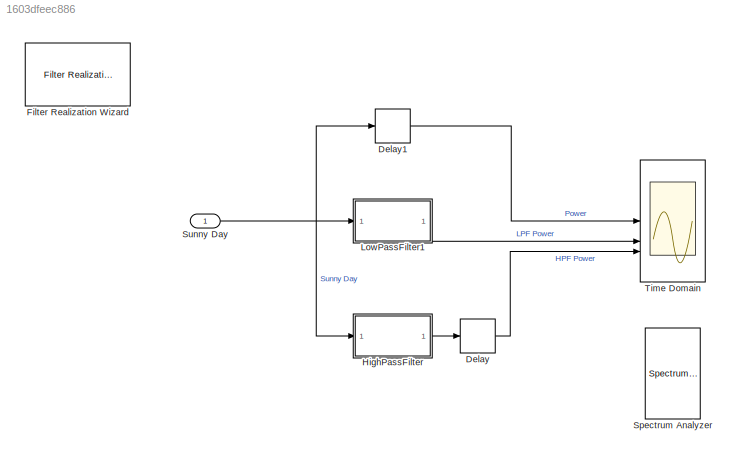
MODEL slx_1603dfeec886
KIND model
CONFIG AbsTol = auto
CONFIG EnableMultiTasking = off
CONFIG FixedStep = auto
CONFIG MaxStep = auto
CONFIG MinStep = auto
CONFIG RelTol = 1e-3
CONFIG SampleTimeConstraint = Unconstrained
CONFIG SolverName = VariableStepAuto
CONFIG StartTime = 0.0
CONFIG StopTime = 1
BLOCK [Delay] Delay
  InputPortMap = u0
BLOCK [Delay] Delay1
  DelayLength = 3
  InputPortMap = u0
BLOCK [Reference] Filter Realization Wizard  REF=dspfdesign/Filter
Realization
Wizard
  Commented = on
  SourceBlock = dspfdesign/Filter\nRealization\nWizard
  SourceType = Filter Realization Wizard
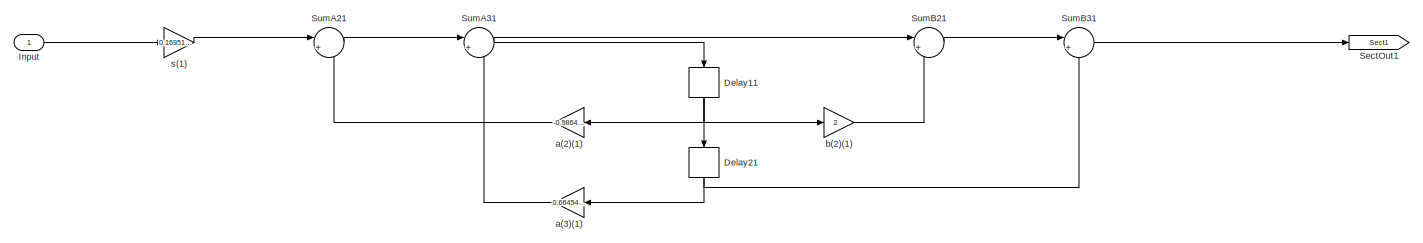
[diagram: HighPassFilter - part 1/2, left side, full height]
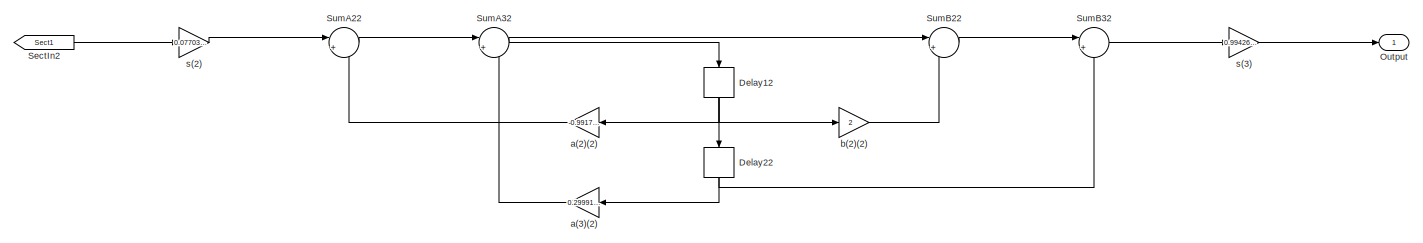
[diagram: HighPassFilter - part 2/2, right side, full height]
BLOCK [SubSystem] HighPassFilter
  ErrorFcn = dspFilterRealizedInBasicElemsAlgLoopErrFcnCallback
  Tag = FilterWizardSubSystem
  UserDataPersistent = on
BLOCK [Delay] HighPassFilter/Delay11
  DelayLength = 1
  InitialCondition = 0
  InputPortMap = u0
  NameLocation = right
BLOCK [Delay] HighPassFilter/Delay12
  DelayLength = 1
  InitialCondition = 0
  InputPortMap = u0
  NameLocation = right
BLOCK [Delay] HighPassFilter/Delay21
  DelayLength = 1
  InitialCondition = 0
  InputPortMap = u0
  NameLocation = right
BLOCK [Delay] HighPassFilter/Delay22
  DelayLength = 1
  InitialCondition = 0
  InputPortMap = u0
  NameLocation = right
BLOCK [Inport] HighPassFilter/Input
BLOCK [Outport] HighPassFilter/Output
BLOCK [From] HighPassFilter/SectIn2
  GotoTag = Sect1
BLOCK [Goto] HighPassFilter/SectOut1
  GotoTag = Sect1
BLOCK [Sum] HighPassFilter/SumA21
  Inputs = |+-
  OutDataTypeStr = Inherit: Same as first input
  RndMeth = Nearest
  SaturateOnIntegerOverflow = on
BLOCK [Sum] HighPassFilter/SumA22
  Inputs = |+-
  OutDataTypeStr = Inherit: Same as first input
  RndMeth = Nearest
  SaturateOnIntegerOverflow = on
BLOCK [Sum] HighPassFilter/SumA31
  Inputs = |+-
  OutDataTypeStr = Inherit: Same as first input
  RndMeth = Nearest
  SaturateOnIntegerOverflow = on
BLOCK [Sum] HighPassFilter/SumA32
  Inputs = |+-
  OutDataTypeStr = Inherit: Same as first input
  RndMeth = Nearest
  SaturateOnIntegerOverflow = on
BLOCK [Sum] HighPassFilter/SumB21
  Inputs = |++
  OutDataTypeStr = Inherit: Same as first input
  RndMeth = Nearest
  SaturateOnIntegerOverflow = on
BLOCK [Sum] HighPassFilter/SumB22
  Inputs = |++
  OutDataTypeStr = Inherit: Same as first input
  RndMeth = Nearest
  SaturateOnIntegerOverflow = on
BLOCK [Sum] HighPassFilter/SumB31
  Inputs = |++
  OutDataTypeStr = Inherit: Same as first input
  RndMeth = Nearest
  SaturateOnIntegerOverflow = on
BLOCK [Sum] HighPassFilter/SumB32
  Inputs = |++
  OutDataTypeStr = Inherit: Same as first input
  RndMeth = Nearest
  SaturateOnIntegerOverflow = on
BLOCK [Gain] HighPassFilter/a(2)(1)
  Gain = -0.986468505507065885
  OutDataTypeStr = Inherit: Same as input
  ParamDataTypeStr = double
  RndMeth = Nearest
  SaturateOnIntegerOverflow = on
BLOCK [Gain] HighPassFilter/a(2)(2)
  Gain = -0.991774516589532085
  OutDataTypeStr = Inherit: Same as input
  ParamDataTypeStr = double
  RndMeth = Nearest
  SaturateOnIntegerOverflow = on
BLOCK [Gain] HighPassFilter/a(3)(1)
  Gain = 0.664548008692817938
  OutDataTypeStr = Inherit: Same as input
  ParamDataTypeStr = double
  RndMeth = Nearest
  SaturateOnIntegerOverflow = on
BLOCK [Gain] HighPassFilter/a(3)(2)
  Gain = 0.299916689229544009
  OutDataTypeStr = Inherit: Same as input
  ParamDataTypeStr = double
  RndMeth = Nearest
  SaturateOnIntegerOverflow = on
BLOCK [Gain] HighPassFilter/b(2)(1)
  Gain = 2
  OutDataTypeStr = Inherit: Same as input
  ParamDataTypeStr = double
  RndMeth = Nearest
  SaturateOnIntegerOverflow = on
BLOCK [Gain] HighPassFilter/b(2)(2)
  Gain = 2
  OutDataTypeStr = Inherit: Same as input
  ParamDataTypeStr = double
  RndMeth = Nearest
  SaturateOnIntegerOverflow = on
BLOCK [Gain] HighPassFilter/s(1)
  Gain = 0.169519875796438041
  OutDataTypeStr = Inherit: Same as input
  ParamDataTypeStr = double
  RndMeth = Nearest
  SaturateOnIntegerOverflow = on
BLOCK [Gain] HighPassFilter/s(2)
  Gain = 0.0770355431600029394
  OutDataTypeStr = Inherit: Same as input
  ParamDataTypeStr = double
  RndMeth = Nearest
  SaturateOnIntegerOverflow = on
BLOCK [Gain] HighPassFilter/s(3)
  Gain = 0.99426007395295668
  OutDataTypeStr = Inherit: Same as input
  ParamDataTypeStr = double
  RndMeth = Nearest
  SaturateOnIntegerOverflow = on
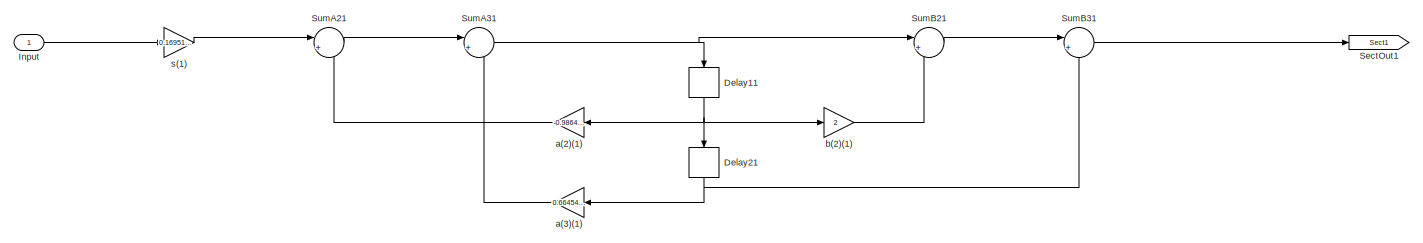
[diagram: LowPassFilter1 - part 1/2, left side, full height]
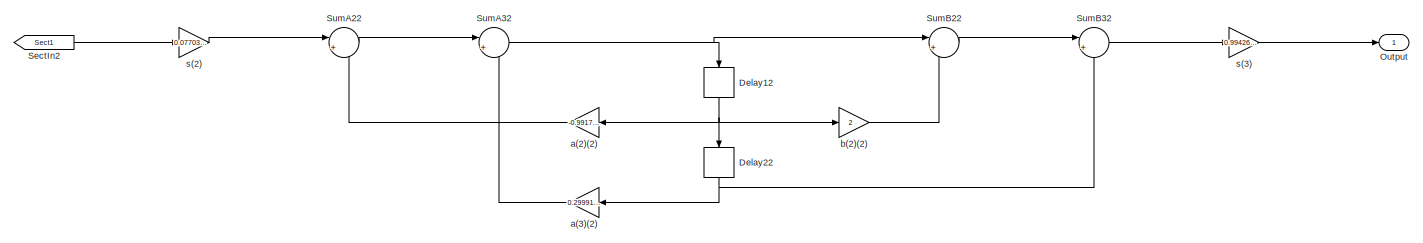
[diagram: LowPassFilter1 - part 2/2, right side, full height]
BLOCK [SubSystem] LowPassFilter1
  ErrorFcn = dspFilterRealizedInBasicElemsAlgLoopErrFcnCallback
  Tag = FilterWizardSubSystem
  UserDataPersistent = on
BLOCK [Delay] LowPassFilter1/Delay11
  DelayLength = 1
  InitialCondition = 0
  InputPortMap = u0
  NameLocation = right
BLOCK [Delay] LowPassFilter1/Delay12
  DelayLength = 1
  InitialCondition = 0
  InputPortMap = u0
  NameLocation = right
BLOCK [Delay] LowPassFilter1/Delay21
  DelayLength = 1
  InitialCondition = 0
  InputPortMap = u0
  NameLocation = right
BLOCK [Delay] LowPassFilter1/Delay22
  DelayLength = 1
  InitialCondition = 0
  InputPortMap = u0
  NameLocation = right
BLOCK [Inport] LowPassFilter1/Input
BLOCK [Outport] LowPassFilter1/Output
BLOCK [From] LowPassFilter1/SectIn2
  GotoTag = Sect1
BLOCK [Goto] LowPassFilter1/SectOut1
  GotoTag = Sect1
BLOCK [Sum] LowPassFilter1/SumA21
  Inputs = |+-
  OutDataTypeStr = Inherit: Same as first input
  RndMeth = Nearest
  SaturateOnIntegerOverflow = on
BLOCK [Sum] LowPassFilter1/SumA22
  Inputs = |+-
  OutDataTypeStr = Inherit: Same as first input
  RndMeth = Nearest
  SaturateOnIntegerOverflow = on
BLOCK [Sum] LowPassFilter1/SumA31
  Inputs = |+-
  OutDataTypeStr = Inherit: Same as first input
  RndMeth = Nearest
  SaturateOnIntegerOverflow = on
BLOCK [Sum] LowPassFilter1/SumA32
  Inputs = |+-
  OutDataTypeStr = Inherit: Same as first input
  RndMeth = Nearest
  SaturateOnIntegerOverflow = on
BLOCK [Sum] LowPassFilter1/SumB21
  Inputs = |++
  OutDataTypeStr = Inherit: Same as first input
  RndMeth = Nearest
  SaturateOnIntegerOverflow = on
BLOCK [Sum] LowPassFilter1/SumB22
  Inputs = |++
  OutDataTypeStr = Inherit: Same as first input
  RndMeth = Nearest
  SaturateOnIntegerOverflow = on
BLOCK [Sum] LowPassFilter1/SumB31
  Inputs = |++
  OutDataTypeStr = Inherit: Same as first input
  RndMeth = Nearest
  SaturateOnIntegerOverflow = on
BLOCK [Sum] LowPassFilter1/SumB32
  Inputs = |++
  OutDataTypeStr = Inherit: Same as first input
  RndMeth = Nearest
  SaturateOnIntegerOverflow = on
BLOCK [Gain] LowPassFilter1/a(2)(1)
  Gain = -0.986468505507065885
  OutDataTypeStr = Inherit: Same as input
  ParamDataTypeStr = double
  RndMeth = Nearest
  SaturateOnIntegerOverflow = on
BLOCK [Gain] LowPassFilter1/a(2)(2)
  Gain = -0.991774516589532085
  OutDataTypeStr = Inherit: Same as input
  ParamDataTypeStr = double
  RndMeth = Nearest
  SaturateOnIntegerOverflow = on
BLOCK [Gain] LowPassFilter1/a(3)(1)
  Gain = 0.664548008692817938
  OutDataTypeStr = Inherit: Same as input
  ParamDataTypeStr = double
  RndMeth = Nearest
  SaturateOnIntegerOverflow = on
BLOCK [Gain] LowPassFilter1/a(3)(2)
  Gain = 0.299916689229544009
  OutDataTypeStr = Inherit: Same as input
  ParamDataTypeStr = double
  RndMeth = Nearest
  SaturateOnIntegerOverflow = on
BLOCK [Gain] LowPassFilter1/b(2)(1)
  Gain = 2
  OutDataTypeStr = Inherit: Same as input
  ParamDataTypeStr = double
  RndMeth = Nearest
  SaturateOnIntegerOverflow = on
BLOCK [Gain] LowPassFilter1/b(2)(2)
  Gain = 2
  OutDataTypeStr = Inherit: Same as input
  ParamDataTypeStr = double
  RndMeth = Nearest
  SaturateOnIntegerOverflow = on
BLOCK [Gain] LowPassFilter1/s(1)
  Gain = 0.169519875796438041
  OutDataTypeStr = Inherit: Same as input
  ParamDataTypeStr = double
  RndMeth = Nearest
  SaturateOnIntegerOverflow = on
BLOCK [Gain] LowPassFilter1/s(2)
  Gain = 0.0770355431600029394
  OutDataTypeStr = Inherit: Same as input
  ParamDataTypeStr = double
  RndMeth = Nearest
  SaturateOnIntegerOverflow = on
BLOCK [Gain] LowPassFilter1/s(3)
  Gain = 0.99426007395295668
  OutDataTypeStr = Inherit: Same as input
  ParamDataTypeStr = double
  RndMeth = Nearest
  SaturateOnIntegerOverflow = on
BLOCK [SpectrumAnalyzer] Spectrum Analyzer
  Commented = on
  FrequencyScale = Log
  FrequencySpan = Start and stop frequencies
  NumInputPorts = 2
  PlotAsTwoSidedSpectrum = off
  SampleRate = 44.1e3
  SampleRateSource = Property
  ScopeFrameLocation = window
  StartFrequency = 20
  StopFrequency = 20e3
  WasSavedAsWebScope = on
  WindowPosition = [473.000000,64.000000,800.000000,500.000000,]
BLOCK [Inport] Sunny Day
  SampleTime = 1/Fs
BLOCK [Scope] Time Domain
  Floating = off
  NumInputPorts = 3
  ScopeSpecificationString = Simulink.scopes.TimeScopeBlockCfg('CurrentConfiguration', extmgr.ConfigurationSet(extmgr.Configuration('Core','General UI',true),extmgr.Configuration('Core','Source UI',true),extmgr.Configuration('Sources','WiredSimulink',true),extmgr.Configuration('Visuals','Time Domain',true,'PlotType','Line','SerializedDisplays',{struct('MinYLimReal','-67.02014','MaxYLimReal','528.69224','YLabelReal','','MinYLi...<+1569ch>
LINE Delay1:1 -> Time Domain:1
LINE Delay:1 -> Time Domain:3
NET HighPassFilter/Delay11:1 -> HighPassFilter/Delay21:1, HighPassFilter/a(2)(1):1, HighPassFilter/b(2)(1):1
NET HighPassFilter/Delay12:1 -> HighPassFilter/Delay22:1, HighPassFilter/a(2)(2):1, HighPassFilter/b(2)(2):1
NET HighPassFilter/Delay21:1 -> HighPassFilter/SumB31:2, HighPassFilter/a(3)(1):1
NET HighPassFilter/Delay22:1 -> HighPassFilter/SumB32:2, HighPassFilter/a(3)(2):1
LINE HighPassFilter/Input:1 -> HighPassFilter/s(1):1
LINE HighPassFilter/SectIn2:1 -> HighPassFilter/s(2):1
LINE HighPassFilter/SumA21:1 -> HighPassFilter/SumA31:1
LINE HighPassFilter/SumA22:1 -> HighPassFilter/SumA32:1
NET HighPassFilter/SumA31:1 -> HighPassFilter/Delay11:1, HighPassFilter/SumB21:1
NET HighPassFilter/SumA32:1 -> HighPassFilter/Delay12:1, HighPassFilter/SumB22:1
LINE HighPassFilter/SumB21:1 -> HighPassFilter/SumB31:1
LINE HighPassFilter/SumB22:1 -> HighPassFilter/SumB32:1
LINE HighPassFilter/SumB31:1 -> HighPassFilter/SectOut1:1
LINE HighPassFilter/SumB32:1 -> HighPassFilter/s(3):1
LINE HighPassFilter/a(2)(1):1 -> HighPassFilter/SumA21:2
LINE HighPassFilter/a(2)(2):1 -> HighPassFilter/SumA22:2
LINE HighPassFilter/a(3)(1):1 -> HighPassFilter/SumA31:2
LINE HighPassFilter/a(3)(2):1 -> HighPassFilter/SumA32:2
LINE HighPassFilter/b(2)(1):1 -> HighPassFilter/SumB21:2
LINE HighPassFilter/b(2)(2):1 -> HighPassFilter/SumB22:2
LINE HighPassFilter/s(1):1 -> HighPassFilter/SumA21:1
LINE HighPassFilter/s(2):1 -> HighPassFilter/SumA22:1
LINE HighPassFilter/s(3):1 -> HighPassFilter/Output:1
LINE HighPassFilter:1 -> Delay:1
NET LowPassFilter1/Delay11:1 -> LowPassFilter1/Delay21:1, LowPassFilter1/a(2)(1):1, LowPassFilter1/b(2)(1):1
NET LowPassFilter1/Delay12:1 -> LowPassFilter1/Delay22:1, LowPassFilter1/a(2)(2):1, LowPassFilter1/b(2)(2):1
NET LowPassFilter1/Delay21:1 -> LowPassFilter1/SumB31:2, LowPassFilter1/a(3)(1):1
NET LowPassFilter1/Delay22:1 -> LowPassFilter1/SumB32:2, LowPassFilter1/a(3)(2):1
LINE LowPassFilter1/Input:1 -> LowPassFilter1/s(1):1
LINE LowPassFilter1/SectIn2:1 -> LowPassFilter1/s(2):1
LINE LowPassFilter1/SumA21:1 -> LowPassFilter1/SumA31:1
LINE LowPassFilter1/SumA22:1 -> LowPassFilter1/SumA32:1
NET LowPassFilter1/SumA31:1 -> LowPassFilter1/Delay11:1, LowPassFilter1/SumB21:1
NET LowPassFilter1/SumA32:1 -> LowPassFilter1/Delay12:1, LowPassFilter1/SumB22:1
LINE LowPassFilter1/SumB21:1 -> LowPassFilter1/SumB31:1
LINE LowPassFilter1/SumB22:1 -> LowPassFilter1/SumB32:1
LINE LowPassFilter1/SumB31:1 -> LowPassFilter1/SectOut1:1
LINE LowPassFilter1/SumB32:1 -> LowPassFilter1/s(3):1
LINE LowPassFilter1/a(2)(1):1 -> LowPassFilter1/SumA21:2
LINE LowPassFilter1/a(2)(2):1 -> LowPassFilter1/SumA22:2
LINE LowPassFilter1/a(3)(1):1 -> LowPassFilter1/SumA31:2
LINE LowPassFilter1/a(3)(2):1 -> LowPassFilter1/SumA32:2
LINE LowPassFilter1/b(2)(1):1 -> LowPassFilter1/SumB21:2
LINE LowPassFilter1/b(2)(2):1 -> LowPassFilter1/SumB22:2
LINE LowPassFilter1/s(1):1 -> LowPassFilter1/SumA21:1
LINE LowPassFilter1/s(2):1 -> LowPassFilter1/SumA22:1
LINE LowPassFilter1/s(3):1 -> LowPassFilter1/Output:1
LINE LowPassFilter1:1 -> Time Domain:2
NET Sunny Day:1 -> Delay1:1, HighPassFilter:1, LowPassFilter1:1
note: NET lines group one-source signal fan-out (src -> all destinations, sorted); 1:1 wires keep LINE
